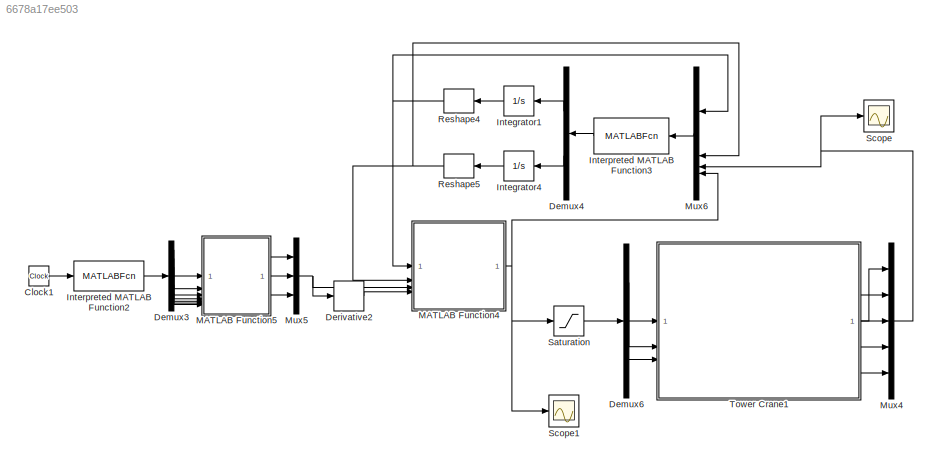
MODEL slx_6678a17ee503
KIND model
CONFIG AbsTol = 1e-3
CONFIG EnableMultiTasking = on
CONFIG FixedStep = 0.25
CONFIG MaxStep = auto
CONFIG MinStep = auto
CONFIG RelTol = 1e-3
CONFIG SampleTimeConstraint = Unconstrained
CONFIG SolverName = FixedStepAuto
CONFIG StartTime = 0.0
CONFIG StopTime = 150
WORKSPACE source: MATLAB code (in-file)
WORKSPACE rCord = 0.25
WORKSPACE rho = 8000
WORKSPACE rContactHoist = 7
WORKSPACE rPitchHoist = rContactHoist + rCord  (= 7.25)
WORKSPACE code: Hoist.RGB = [0.35 0.35 1.0]; % Color, RGB 0-1
WORKSPACE rContactTrolley = 5
WORKSPACE rPitchTrolley = rContactTrolley + rCord  (= 5.25)
WORKSPACE code: Trolley.RGB = [1 0.15 0.15]; % Color, RGB 0-1
BLOCK [Clock] Clock1
BLOCK [Demux] Demux3
  Outputs = 7
BLOCK [Demux] Demux4
  NameLocation = top
  Outputs = 2
BLOCK [Demux] Demux6
  Outputs = 3
BLOCK [Derivative] Derivative2
BLOCK [Integrator] Integrator1
  InitialCondition = [0;0;45;0;0]
  NameLocation = top
BLOCK [Integrator] Integrator4
  InitialCondition = [0;0;0;0;0]
  NameLocation = top
BLOCK [MATLABFcn] Interpreted MATLAB Function2
  MATLABFcn = referenceflat
  OutputDimensions = 7
BLOCK [MATLABFcn] Interpreted MATLAB Function3
  MATLABFcn = finiteeso1
  NameLocation = top
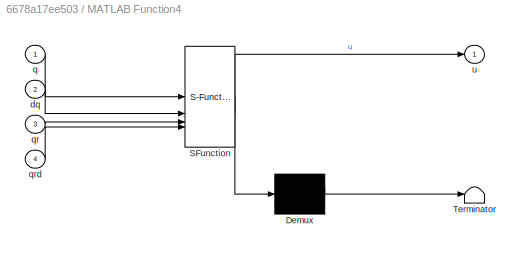
BLOCK [SubSystem] MATLAB Function4
  ErrorFcn = Stateflow.Translate.translate
  PermitHierarchicalResolution = ExplicitOnly
  SFBlockType = MATLAB Function
  TreatAsAtomicUnit = on
BLOCK [Demux] MATLAB Function4/ Demux 
  Outputs = 1
BLOCK [S-Function] MATLAB Function4/ SFunction 
  EnableBusSupport = on
  FunctionName = sf_sfun
  PortCounts = [4 2]
  SFcnIsStateOwnerBlock = off
  SFunctionDeploymentMode = off
  Tag = Stateflow S-Function 5
BLOCK [Terminator] MATLAB Function4/ Terminator 
BLOCK [Inport] MATLAB Function4/dq
  Port = 2
BLOCK [Inport] MATLAB Function4/q
BLOCK [Inport] MATLAB Function4/qr
  Port = 3
BLOCK [Inport] MATLAB Function4/qrd
  Port = 4
BLOCK [Outport] MATLAB Function4/u
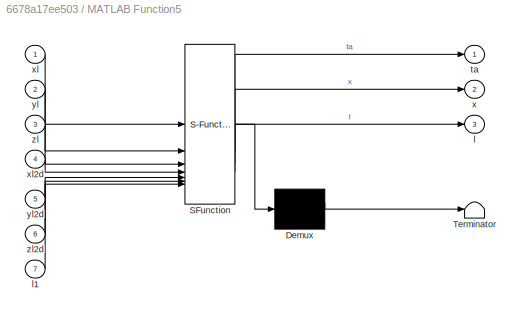
BLOCK [SubSystem] MATLAB Function5
  ErrorFcn = Stateflow.Translate.translate
  PermitHierarchicalResolution = ExplicitOnly
  SFBlockType = MATLAB Function
  TreatAsAtomicUnit = on
BLOCK [Demux] MATLAB Function5/ Demux 
  Outputs = 1
BLOCK [S-Function] MATLAB Function5/ SFunction 
  EnableBusSupport = on
  FunctionName = sf_sfun
  PortCounts = [7 4]
  SFcnIsStateOwnerBlock = off
  SFunctionDeploymentMode = off
  Tag = Stateflow S-Function 6
BLOCK [Terminator] MATLAB Function5/ Terminator 
BLOCK [Outport] MATLAB Function5/l
  Port = 3
BLOCK [Inport] MATLAB Function5/l1
  Port = 7
BLOCK [Outport] MATLAB Function5/ta
BLOCK [Outport] MATLAB Function5/x
  Port = 2
BLOCK [Inport] MATLAB Function5/xl
BLOCK [Inport] MATLAB Function5/xl2d
  Port = 4
BLOCK [Inport] MATLAB Function5/yl
  Port = 2
BLOCK [Inport] MATLAB Function5/yl2d
  Port = 5
BLOCK [Inport] MATLAB Function5/zl
  Port = 3
BLOCK [Inport] MATLAB Function5/zl2d
  Port = 6
BLOCK [Mux] Mux4
  DisplayOption = bar
  Inputs = 5
BLOCK [Mux] Mux5
  DisplayOption = bar
  Inputs = 3
BLOCK [Mux] Mux6
  DisplayOption = bar
  NameLocation = top
BLOCK [Reshape] Reshape4
  NameLocation = top
  OutputDimensionality = Customize
  OutputDimensions = [5,1]
BLOCK [Reshape] Reshape5
  NameLocation = top
  OutputDimensionality = Customize
  OutputDimensions = [5,1]
BLOCK [Saturate] Saturation
  LowerLimit = [-2000;-400;-6000]
  UpperLimit = [2000;400;0]
BLOCK [Scope] Scope
  Floating = off
  NumInputPorts = 1
  ScopeSpecificationString = Simulink.scopes.TimeScopeBlockCfg('CurrentConfiguration', extmgr.ConfigurationSet(extmgr.Configuration('Core','General UI',true),extmgr.Configuration('Core','Source UI',true),extmgr.Configuration('Sources','WiredSimulink',true,'DataLoggingVariableName','ScopeData1'),extmgr.Configuration('Visuals','Time Domain',true,'SerializedDisplays',{struct('MinYLimReal','-6.20055','MaxYLimReal','55.57446','YLa...<+1540ch>
BLOCK [Scope] Scope1
  Floating = off
  NumInputPorts = 1
  ScopeSpecificationString = Simulink.scopes.TimeScopeBlockCfg('CurrentConfiguration', extmgr.ConfigurationSet(extmgr.Configuration('Core','General UI',true),extmgr.Configuration('Core','Source UI',true),extmgr.Configuration('Sources','WiredSimulink',true,'DataLoggingVariableName','ScopeData2'),extmgr.Configuration('Visuals','Time Domain',true,'SerializedDisplays',{struct('MinYLimReal','-5619.59402','MaxYLimReal','1002.60259'...<+1487ch>
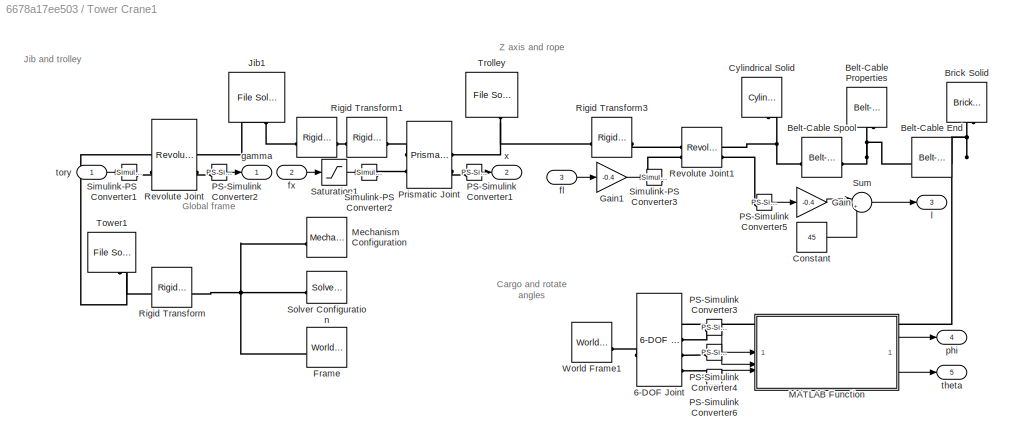
BLOCK [SubSystem] Tower Crane1
  Tag = PublishSubsystem
BLOCK [Reference] Tower Crane1/   REF=sm_lib/Frames and
Transforms/Rigid
Transform
  SourceBlock = sm_lib/Frames and\nTransforms/Rigid\nTransform
  SourceType = Rigid\nTransform
BLOCK [Reference] Tower Crane1/ Frame  REF=sm_lib/Frames and
Transforms/World Frame
  NameLocation = top
  SourceBlock = sm_lib/Frames and\nTransforms/World Frame
  SourceType = World Frame
BLOCK [Reference] Tower Crane1/6-DOF Joint  REF=sm_lib/Joints/6-DOF Joint
  SourceBlock = sm_lib/Joints/6-DOF Joint
  SourceType = 6-DOF Joint
BLOCK [Reference] Tower Crane1/Belt-Cable End  REF=sm_lib/Belts and Cables/Belt-Cable End
  NameLocation = top
  SourceBlock = sm_lib/Belts and Cables/Belt-Cable End
  SourceType = Belt-Cable End
BLOCK [Reference] Tower Crane1/Belt-Cable Properties  REF=sm_lib/Belts and Cables/Belt-Cable
Properties
  NameLocation = right
  SourceBlock = sm_lib/Belts and Cables/Belt-Cable\nProperties
  SourceType = Belt-Cable\nProperties
BLOCK [Reference] Tower Crane1/Belt-Cable Spool  REF=sm_lib/Belts and Cables/Belt-Cable Spool
  SourceBlock = sm_lib/Belts and Cables/Belt-Cable Spool
  SourceType = Belt-Cable Spool
BLOCK [Reference] Tower Crane1/Brick Solid  REF=sm_lib/Body Elements/Brick Solid
  NameLocation = top
  SourceBlock = sm_lib/Body Elements/Brick Solid
  SourceType = Brick Solid
BLOCK [Constant] Tower Crane1/Constant
  Value = 45
BLOCK [Reference] Tower Crane1/Cylindrical Solid  REF=sm_lib/Body Elements/Cylindrical Solid
  NameLocation = left
  SourceBlock = sm_lib/Body Elements/Cylindrical Solid
  SourceType = Cylindrical Solid
BLOCK [Gain] Tower Crane1/Gain
  Gain = -0.4
BLOCK [Gain] Tower Crane1/Gain1
  Gain = -0.4
BLOCK [Reference] Tower Crane1/Jib1  REF=sm_lib/Body Elements/File Solid
  NameLocation = left
  SourceBlock = sm_lib/Body Elements/File Solid
  SourceType = File Solid
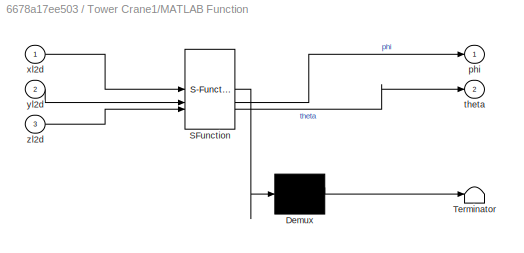
BLOCK [SubSystem] Tower Crane1/MATLAB Function
  ErrorFcn = Stateflow.Translate.translate
  PermitHierarchicalResolution = ExplicitOnly
  SFBlockType = MATLAB Function
  TreatAsAtomicUnit = on
BLOCK [Demux] Tower Crane1/MATLAB Function/ Demux 
  Outputs = 1
BLOCK [S-Function] Tower Crane1/MATLAB Function/ SFunction 
  EnableBusSupport = on
  FunctionName = sf_sfun
  PortCounts = [3 3]
  SFcnIsStateOwnerBlock = off
  SFunctionDeploymentMode = off
  Tag = Stateflow S-Function 3
BLOCK [Terminator] Tower Crane1/MATLAB Function/ Terminator 
BLOCK [Outport] Tower Crane1/MATLAB Function/phi
BLOCK [Outport] Tower Crane1/MATLAB Function/theta
  Port = 2
BLOCK [Inport] Tower Crane1/MATLAB Function/xl2d
BLOCK [Inport] Tower Crane1/MATLAB Function/yl2d
  Port = 2
BLOCK [Inport] Tower Crane1/MATLAB Function/zl2d
  Port = 3
BLOCK [Reference] Tower Crane1/Mechanism Configuration  REF=sm_lib/Utilities/Mechanism
Configuration
  SourceBlock = sm_lib/Utilities/Mechanism\nConfiguration
  SourceType = Mechanism\nConfiguration
BLOCK [Reference] Tower Crane1/PS-Simulink Converter1  REF=nesl_utility/PS-Simulink
Converter
  SourceBlock = nesl_utility/PS-Simulink\nConverter
  SourceType = PS-Simulink\nConverter
BLOCK [Reference] Tower Crane1/PS-Simulink Converter2  REF=nesl_utility/PS-Simulink
Converter
  NameLocation = left
  SourceBlock = nesl_utility/PS-Simulink\nConverter
  SourceType = PS-Simulink\nConverter
BLOCK [Reference] Tower Crane1/PS-Simulink Converter3  REF=nesl_utility/PS-Simulink
Converter
  SourceBlock = nesl_utility/PS-Simulink\nConverter
  SourceType = PS-Simulink\nConverter
BLOCK [Reference] Tower Crane1/PS-Simulink Converter4  REF=nesl_utility/PS-Simulink
Converter
  SourceBlock = nesl_utility/PS-Simulink\nConverter
  SourceType = PS-Simulink\nConverter
BLOCK [Reference] Tower Crane1/PS-Simulink Converter5  REF=nesl_utility/PS-Simulink
Converter
  SourceBlock = nesl_utility/PS-Simulink\nConverter
  SourceType = PS-Simulink\nConverter
BLOCK [Reference] Tower Crane1/PS-Simulink Converter6  REF=nesl_utility/PS-Simulink
Converter
  SourceBlock = nesl_utility/PS-Simulink\nConverter
  SourceType = PS-Simulink\nConverter
BLOCK [Reference] Tower Crane1/Prismatic Joint  REF=sm_lib/Joints/Prismatic
Joint
  SourceBlock = sm_lib/Joints/Prismatic\nJoint
  SourceType = Prismatic\nJoint
BLOCK [Reference] Tower Crane1/Revolute Joint  REF=sm_lib/Joints/Revolute Joint
  SourceBlock = sm_lib/Joints/Revolute Joint
  SourceType = Revolute Joint
BLOCK [Reference] Tower Crane1/Revolute Joint1  REF=sm_lib/Joints/Revolute Joint
  SourceBlock = sm_lib/Joints/Revolute Joint
  SourceType = Revolute Joint
BLOCK [Reference] Tower Crane1/Rigid Transform  REF=sm_lib/Frames and
Transforms/Rigid
Transform
  NameLocation = top
  SourceBlock = sm_lib/Frames and\nTransforms/Rigid\nTransform
  SourceType = Rigid\nTransform
BLOCK [Reference] Tower Crane1/Rigid Transform1  REF=sm_lib/Frames and
Transforms/Rigid
Transform
  NameLocation = right
  SourceBlock = sm_lib/Frames and\nTransforms/Rigid\nTransform
  SourceType = Rigid\nTransform
BLOCK [Reference] Tower Crane1/Rigid Transform3  REF=sm_lib/Frames and
Transforms/Rigid
Transform
  SourceBlock = sm_lib/Frames and\nTransforms/Rigid\nTransform
  SourceType = Rigid\nTransform
BLOCK [Saturate] Tower Crane1/Saturation1
  LowerLimit = -100
  UpperLimit = 100
BLOCK [Reference] Tower Crane1/Simulink-PS Converter1  REF=nesl_utility/Simulink-PS
Converter
  SourceBlock = nesl_utility/Simulink-PS\nConverter
  SourceType = Simulink-PS\nConverter
BLOCK [Reference] Tower Crane1/Simulink-PS Converter2  REF=nesl_utility/Simulink-PS
Converter
  SourceBlock = nesl_utility/Simulink-PS\nConverter
  SourceType = Simulink-PS\nConverter
BLOCK [Reference] Tower Crane1/Simulink-PS Converter3  REF=nesl_utility/Simulink-PS
Converter
  SourceBlock = nesl_utility/Simulink-PS\nConverter
  SourceType = Simulink-PS\nConverter
BLOCK [Reference] Tower Crane1/Solver Configuration  REF=nesl_utility/Solver
Configuration
  NameLocation = top
  SourceBlock = nesl_utility/Solver\nConfiguration
  SourceType = Solver\nConfiguration
BLOCK [Sum] Tower Crane1/Sum
  Inputs = |++
BLOCK [Reference] Tower Crane1/Tower1  REF=sm_lib/Body Elements/File Solid
  NameLocation = right
  SourceBlock = sm_lib/Body Elements/File Solid
  SourceType = File Solid
BLOCK [Reference] Tower Crane1/Trolley   REF=sm_lib/Body Elements/File Solid
  NameLocation = left
  SourceBlock = sm_lib/Body Elements/File Solid
  SourceType = File Solid
BLOCK [Reference] Tower Crane1/World Frame1  REF=sm_lib/Frames and
Transforms/World Frame
  SourceBlock = sm_lib/Frames and\nTransforms/World Frame
  SourceType = World Frame
BLOCK [Inport] Tower Crane1/fl
  Port = 3
BLOCK [Inport] Tower Crane1/fx
  Port = 2
BLOCK [Outport] Tower Crane1/gamma
BLOCK [Outport] Tower Crane1/l
  Port = 3
BLOCK [Outport] Tower Crane1/phi
  Port = 4
BLOCK [Outport] Tower Crane1/theta
  Port = 5
BLOCK [Inport] Tower Crane1/tory
BLOCK [Outport] Tower Crane1/x
  Port = 2
ANNOTATION Tower Crane1: Cargo and rotate angles
ANNOTATION Tower Crane1: Global frame
ANNOTATION Tower Crane1: Jib and trolley
ANNOTATION Tower Crane1: Z axis and rope
LINE Clock1:1 -> Interpreted MATLAB Function2:1
LINE Demux3:1 -> MATLAB Function5:1
LINE Demux3:2 -> MATLAB Function5:2
LINE Demux3:3 -> MATLAB Function5:3
LINE Demux3:4 -> MATLAB Function5:4
LINE Demux3:5 -> MATLAB Function5:5
LINE Demux3:6 -> MATLAB Function5:6
LINE Demux3:7 -> MATLAB Function5:7
LINE Demux4:1 -> Integrator1:1
LINE Demux4:2 -> Integrator4:1
LINE Demux6:1 -> Tower Crane1:1
LINE Demux6:2 -> Tower Crane1:2
LINE Demux6:3 -> Tower Crane1:3
LINE Derivative2:1 -> MATLAB Function4:4
LINE Integrator1:1 -> Reshape4:1
LINE Integrator4:1 -> Reshape5:1
LINE Interpreted MATLAB Function2:1 -> Demux3:1
LINE Interpreted MATLAB Function3:1 -> Demux4:1
NET MATLAB Function4:1 -> Mux6:4, Saturation:1, Scope1:1
LINE MATLAB Function5:1 -> Mux5:1
LINE MATLAB Function5:2 -> Mux5:2
LINE MATLAB Function5:3 -> Mux5:3
NET Mux4:1 -> Mux6:3, Scope:1
NET Mux5:1 -> Derivative2:1, MATLAB Function4:3
LINE Mux6:1 -> Interpreted MATLAB Function3:1
NET Reshape4:1 -> MATLAB Function4:1, Mux6:1
NET Reshape5:1 -> MATLAB Function4:2, Mux6:2
LINE Saturation:1 -> Demux6:1
LINE Tower Crane1/Constant:1 -> Tower Crane1/Sum:2
LINE Tower Crane1/Gain1:1 -> Tower Crane1/Simulink-PS Converter3:1
LINE Tower Crane1/Gain:1 -> Tower Crane1/Sum:1
LINE Tower Crane1/MATLAB Function:1 -> Tower Crane1/phi:1
LINE Tower Crane1/MATLAB Function:2 -> Tower Crane1/theta:1
LINE Tower Crane1/PS-Simulink Converter1:1 -> Tower Crane1/x:1
LINE Tower Crane1/PS-Simulink Converter2:1 -> Tower Crane1/gamma:1
LINE Tower Crane1/PS-Simulink Converter3:1 -> Tower Crane1/MATLAB Function:1
LINE Tower Crane1/PS-Simulink Converter4:1 -> Tower Crane1/MATLAB Function:2
LINE Tower Crane1/PS-Simulink Converter5:1 -> Tower Crane1/Gain:1
LINE Tower Crane1/PS-Simulink Converter6:1 -> Tower Crane1/MATLAB Function:3
LINE Tower Crane1/Saturation1:1 -> Tower Crane1/Simulink-PS Converter2:1
LINE Tower Crane1/Sum:1 -> Tower Crane1/l:1
LINE Tower Crane1/fl:1 -> Tower Crane1/Gain1:1
LINE Tower Crane1/fx:1 -> Tower Crane1/Saturation1:1
LINE Tower Crane1/tory:1 -> Tower Crane1/Simulink-PS Converter1:1
LINE Tower Crane1:1 -> Mux4:1
LINE Tower Crane1:2 -> Mux4:2
LINE Tower Crane1:3 -> Mux4:3
LINE Tower Crane1:4 -> Mux4:4
LINE Tower Crane1:5 -> Mux4:5
PLINE Tower Crane1/ :LConn1 -- Tower Crane1/Rigid Transform1:LConn1
PNET net1: Tower Crane1/ :RConn1 -- Tower Crane1/Jib1:RConn1 -- Tower Crane1/Revolute Joint:RConn1
PNET net2: Tower Crane1/ Frame:RConn1 -- Tower Crane1/Mechanism Configuration:RConn1 -- Tower Crane1/Rigid Transform:LConn1 -- Tower Crane1/Solver Configuration:RConn1
PLINE Tower Crane1/6-DOF Joint:LConn1 -- Tower Crane1/World Frame1:RConn1
PNET net3: Tower Crane1/6-DOF Joint:RConn1 -- Tower Crane1/Belt-Cable End:LConn1 -- Tower Crane1/Brick Solid:RConn1
PLINE Tower Crane1/6-DOF Joint:RConn2 -- Tower Crane1/PS-Simulink Converter3:LConn1
PLINE Tower Crane1/6-DOF Joint:RConn3 -- Tower Crane1/PS-Simulink Converter4:LConn1
PLINE Tower Crane1/6-DOF Joint:RConn4 -- Tower Crane1/PS-Simulink Converter6:LConn1
PNET net4: Tower Crane1/Belt-Cable End:RConn1 -- Tower Crane1/Belt-Cable Properties:LConn1 -- Tower Crane1/Belt-Cable Spool:RConn1
PNET net5: Tower Crane1/Belt-Cable Spool:LConn1 -- Tower Crane1/Cylindrical Solid:RConn1 -- Tower Crane1/Revolute Joint1:RConn1
PLINE Tower Crane1/PS-Simulink Converter1:LConn1 -- Tower Crane1/Prismatic Joint:RConn2
PLINE Tower Crane1/PS-Simulink Converter2:LConn1 -- Tower Crane1/Revolute Joint:RConn2
PLINE Tower Crane1/PS-Simulink Converter5:LConn1 -- Tower Crane1/Revolute Joint1:RConn2
PLINE Tower Crane1/Prismatic Joint:LConn1 -- Tower Crane1/Rigid Transform1:RConn1
PLINE Tower Crane1/Prismatic Joint:LConn2 -- Tower Crane1/Simulink-PS Converter2:RConn1
PNET net6: Tower Crane1/Prismatic Joint:RConn1 -- Tower Crane1/Rigid Transform3:LConn1 -- Tower Crane1/Trolley :RConn1
PLINE Tower Crane1/Revolute Joint1:LConn1 -- Tower Crane1/Rigid Transform3:RConn1
PLINE Tower Crane1/Revolute Joint1:LConn2 -- Tower Crane1/Simulink-PS Converter3:RConn1
PNET net7: Tower Crane1/Revolute Joint:LConn1 -- Tower Crane1/Rigid Transform:RConn1 -- Tower Crane1/Tower1:RConn1
PLINE Tower Crane1/Revolute Joint:LConn2 -- Tower Crane1/Simulink-PS Converter1:RConn1
note: NET lines group one-source signal fan-out (src -> all destinations, sorted); 1:1 wires keep LINE; PNET lines group multi-terminal physical nets as a canonical sorted terminal list (undirected conserving connections); 2-terminal nets keep the pairwise PLINE form
CHART Tower Crane1/MATLAB Function states=1 transitions=1
  STATE_LABEL 'eML_blk_kernel()'
  STATE_LABEL 'SCRIPT:\nfunction [phi,theta] = calculateangle(xl2d,yl2d,zl2d)\ng = 9.81;\nphi = atan(-xl2d/(zl2d+g));\nmau = sqrt(xl2d^2+(zl2d+g)^2);\ntheta = atan(yl2d/mau);\nend'
CHART MATLAB Function4 states=1 transitions=1
  STATE_LABEL 'eML_blk_kernel()'
  STATE_LABEL 'SCRIPT:\nfunction u  = fcn(q, dq, qr,qrd)\n\ng=9.81;\nm=500;\n\nta=q(1);\ndta=dq(1);\nx=q(2);\ndx=dq(2);\nl=q(3);\ndl=dq(3);\ntar=qr(1);\ndtar=qrd(1);\nxr=qr(2);\ndxr=qrd(2);\nlr=qr(3);\ndlr=qrd(3);\n\nea=ta-tar;\ndea=dta-dtar;\n\nex=x-xr;\ndex=dx-dxr;\n\nel=l-lr;\ndel=dl-dlr;\ntx=q(4);\nty=q(5);\ndtx=dq(4);\ndty=dq(5);\n\nk11=10838.73;\nk12=92815.21;\nk13=9.74;\nk14=10.52;\nk21=338.73;\nk22=52.98;\nk23=10.24;\nk24=10.65;\nk31=22.36;\nk3...<+124ch>'
CHART MATLAB Function5 states=1 transitions=1
  STATE_LABEL 'eML_blk_kernel()'
  STATE_LABEL 'SCRIPT:\nfunction [ta,x,l] = fcn(xl,yl,zl,xl2d,yl2d,zl2d,l1)\nh=45;\ng=9.81;\nl=(xl2d^2/(g + zl2d)^2 + 1)^(1/2)*(h - zl)*(yl2d^2/((g + zl2d)^2 + xl2d^2) + 1)^(1/2);\nx=sqrt(xl^2+yl^2);\nta=12/300*l1;\nend'
CHART  states=0 transitions=0
CHART  states=0 transitions=0
CHART  states=0 transitions=0
